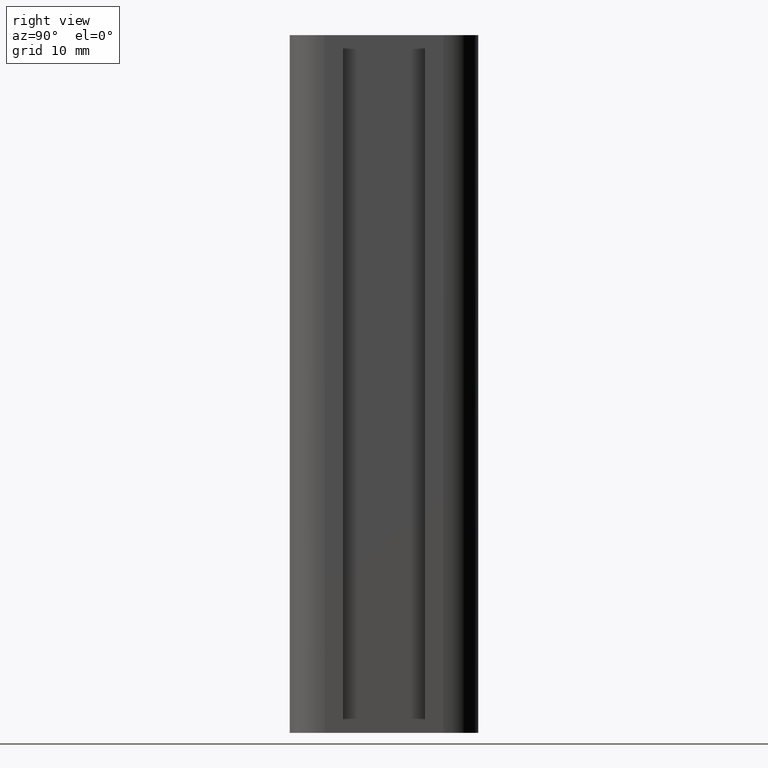
[diagram: clean part render]
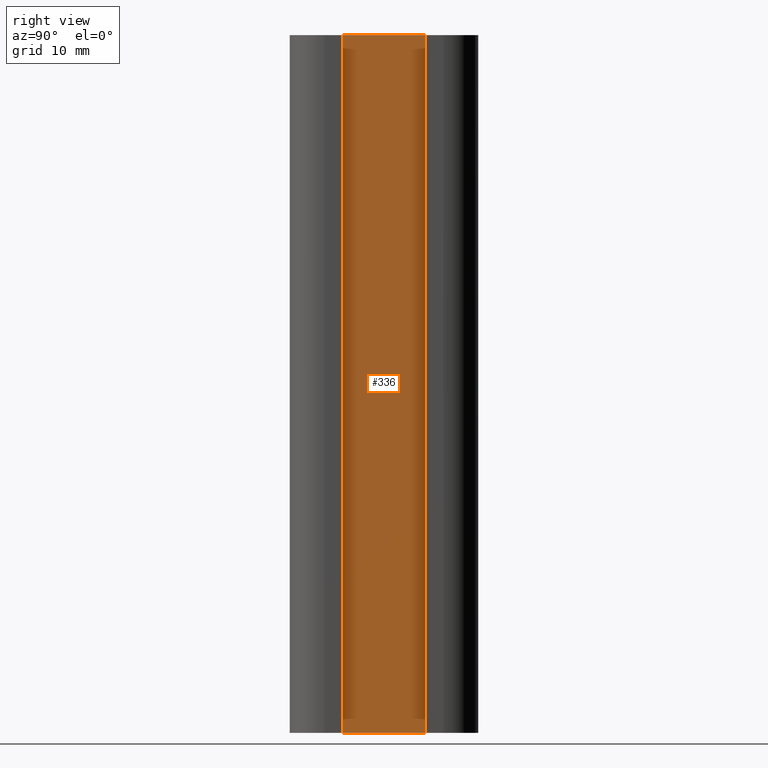
[diagram: same view with one face highlighted and labeled with its STEP entity id]
A machine part, right view. The second image highlights one B-rep face of the part: STEP entity #336.
In plain terms, the highlighted planar face has unit normal (1, 0, 0).
Its self-contained STEP definition (entity closure, byte-faithful):
#17=PLANE('',#358);
#32=FACE_OUTER_BOUND('',#50,.T.);
#50=EDGE_LOOP('',(#245,#246,#247,#248));
#72=LINE('',#494,#112);
#73=LINE('',#497,#113);
#74=LINE('',#499,#114);
#75=LINE('',#500,#115);
#112=VECTOR('',#398,100.);
#113=VECTOR('',#401,11.8);
#114=VECTOR('',#402,11.8);
#115=VECTOR('',#403,100.);
#159=VERTEX_POINT('',#490);
#160=VERTEX_POINT('',#492);
#161=VERTEX_POINT('',#496);
#162=VERTEX_POINT('',#498);
#194=EDGE_CURVE('',#159,#160,#72,.T.);
#195=EDGE_CURVE('',#159,#161,#73,.T.);
#196=EDGE_CURVE('',#162,#160,#74,.T.);
#197=EDGE_CURVE('',#161,#162,#75,.T.);
#245=ORIENTED_EDGE('',*,*,#195,.F.);
#246=ORIENTED_EDGE('',*,*,#194,.T.);
#247=ORIENTED_EDGE('',*,*,#196,.F.);
#248=ORIENTED_EDGE('',*,*,#197,.F.);
#336=ADVANCED_FACE('',(#32),#17,.T.);
#358=AXIS2_PLACEMENT_3D('',#495,#399,#400);
#398=DIRECTION('',(0.,0.,1.));
#399=DIRECTION('center_axis',(1.,0.,0.));
#400=DIRECTION('ref_axis',(0.,1.,0.));
#401=DIRECTION('',(0.,-1.,0.));
#402=DIRECTION('',(0.,1.,0.));
#403=DIRECTION('',(0.,0.,1.));
#490=CARTESIAN_POINT('',(3.7,5.9,0.));
#492=CARTESIAN_POINT('',(3.7,5.9,100.));
#494=CARTESIAN_POINT('',(3.7,5.9,0.));
#495=CARTESIAN_POINT('Origin',(3.7,-5.9,0.));
#496=CARTESIAN_POINT('',(3.7,-5.9,0.));
#497=CARTESIAN_POINT('',(3.7,5.9,0.));
#498=CARTESIAN_POINT('',(3.7,-5.9,100.));
#499=CARTESIAN_POINT('',(3.7,5.9,100.));
#500=CARTESIAN_POINT('',(3.7,-5.9,0.));